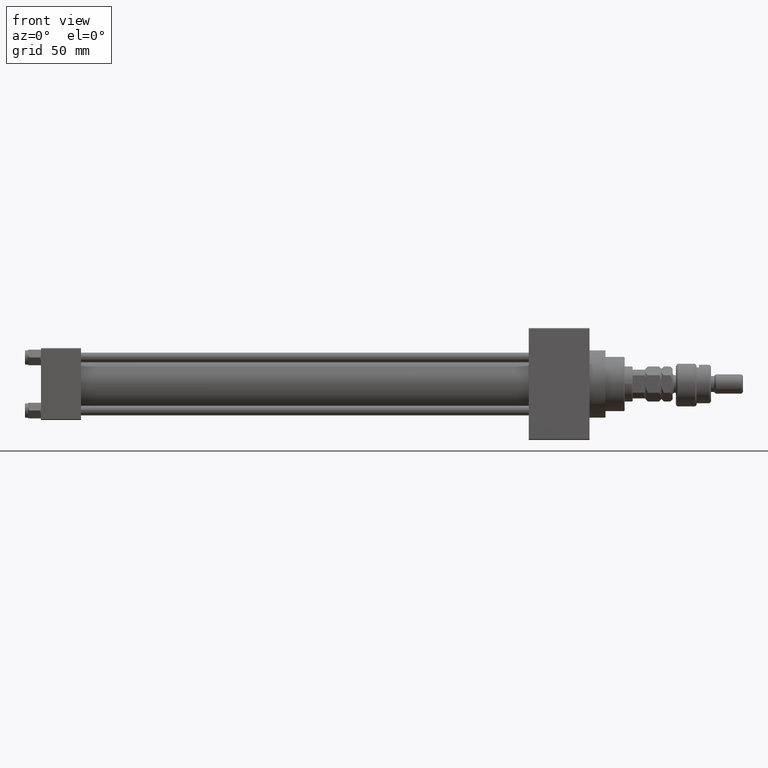
[diagram: clean part render]
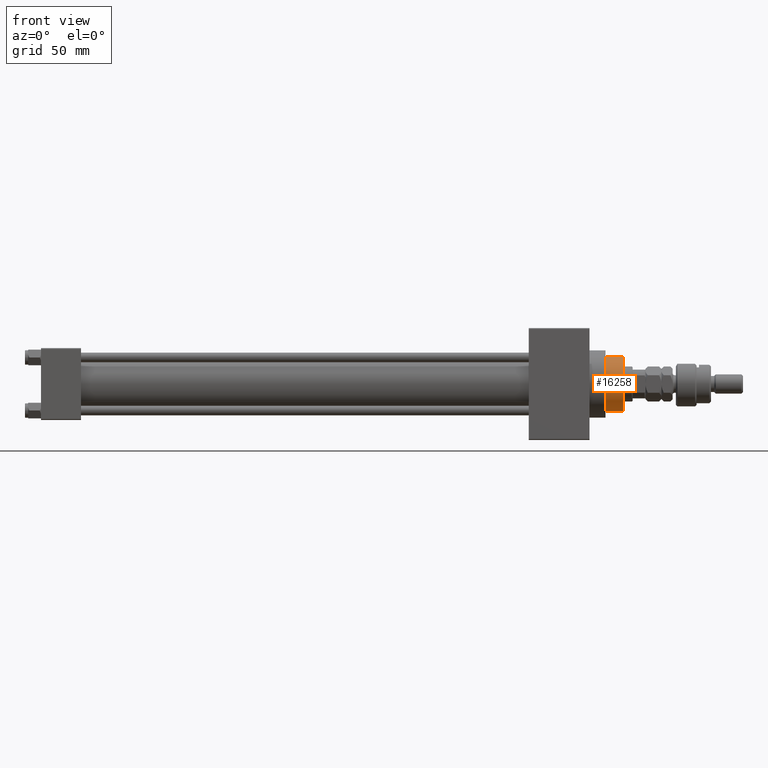
[diagram: same view with one face highlighted and labeled with its STEP entity id]
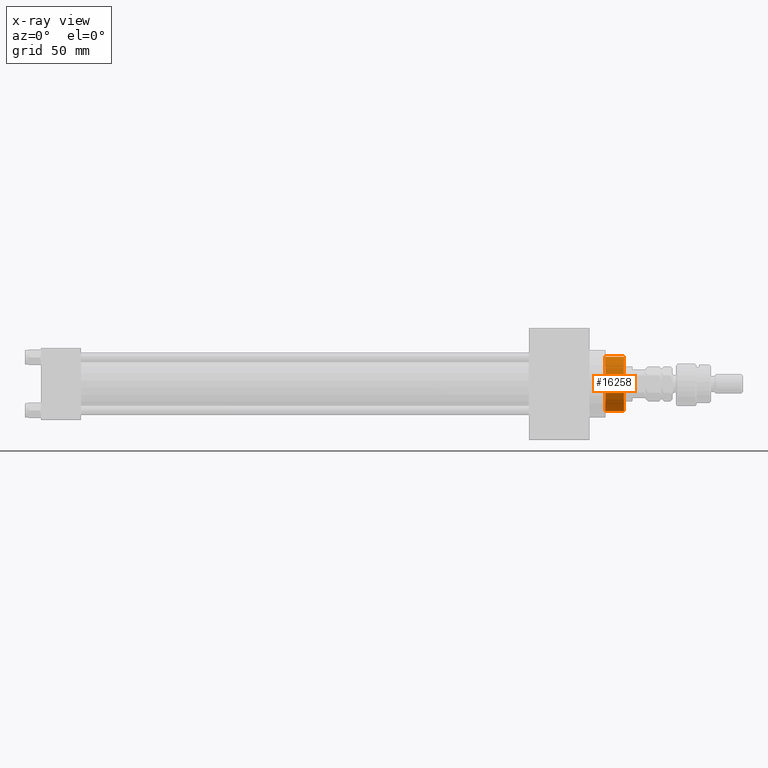
[diagram: x-ray of the same camera — body ghosted, the highlighted face saturated]
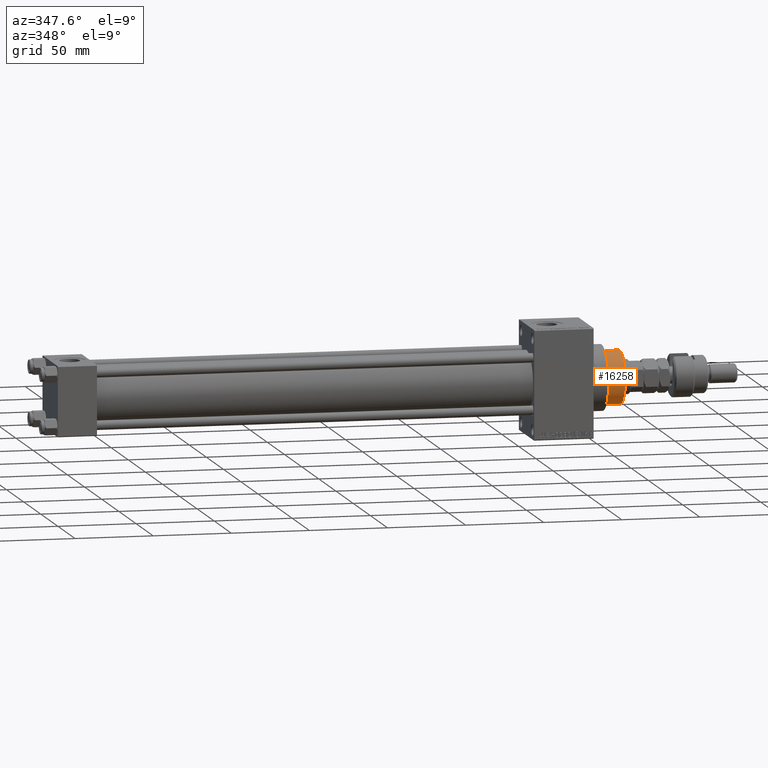
[diagram: same view with one face highlighted and labeled with its STEP entity id]
A machine part, front view. The second image highlights one B-rep face of the part: STEP entity #16258.
The next image is the same camera in x-ray: the body ghosted, the highlighted face saturated — about 0% of this face is hidden behind the body in this view.
A second angle (auxiliary view) of the same face is appended — the face is thin or edge-on in the first view.
In plain terms, the highlighted cylindrical surface (edge-blend (fillet) strip) has radius 17 mm, axis along (-1, 0, 0).
Its self-contained STEP definition (entity closure, byte-faithful):
#255 = DIRECTION ( 'NONE',  ( -1.000000000000000000, 0.000000000000000000, 0.000000000000000000 ) ) ;
#278 = CARTESIAN_POINT ( 'NONE',  ( -17.00000000000000000, 0.000000000000000000, 43.25999999999999801 ) ) ;
#608 = LINE ( 'NONE', #31333, #19171 ) ;
#774 = CYLINDRICAL_SURFACE ( 'NONE', #11442, 17.00000000000000000 ) ;
#1105 = VERTEX_POINT ( 'NONE', #278 ) ;
#1553 = VERTEX_POINT ( 'NONE', #10457 ) ;
#4864 = VECTOR ( 'NONE', #6081, 1000.000000000000000 ) ;
#6081 = DIRECTION ( 'NONE',  ( -0.000000000000000000, -0.000000000000000000, -1.000000000000000000 ) ) ;
#6368 = ORIENTED_EDGE ( 'NONE', *, *, #45739, .T. ) ;
#8495 = DIRECTION ( 'NONE',  ( -0.000000000000000000, -0.000000000000000000, -1.000000000000000000 ) ) ;
#8826 = AXIS2_PLACEMENT_3D ( 'NONE', #22909, #37895, #14775 ) ;
#10340 = CARTESIAN_POINT ( 'NONE',  ( 17.00000000000000000, 2.081899558550500280E-15, 54.76000000000001222 ) ) ;
#10457 = CARTESIAN_POINT ( 'NONE',  ( 17.00000000000000000, 2.081899558550500280E-15, 43.25999999999999801 ) ) ;
#11442 = AXIS2_PLACEMENT_3D ( 'NONE', #13829, #32801, #255 ) ;
#12898 = ORIENTED_EDGE ( 'NONE', *, *, #13998, .T. ) ;
#13829 = CARTESIAN_POINT ( 'NONE',  ( 0.000000000000000000, 0.000000000000000000, 55.26000000000000512 ) ) ;
#13953 = CIRCLE ( 'NONE', #18162, 17.00000000000000000 ) ;
#13998 = EDGE_CURVE ( 'NONE', #49097, #16027, #40701, .T. ) ;
#14775 = DIRECTION ( 'NONE',  ( 1.000000000000000000, 0.000000000000000000, 0.000000000000000000 ) ) ;
#16027 = VERTEX_POINT ( 'NONE', #10340 ) ;
#16258 = ADVANCED_FACE ( 'NONE', ( #36503 ), #774, .T. ) ;
#18162 = AXIS2_PLACEMENT_3D ( 'NONE', #42231, #18590, #33819 ) ;
#18590 = DIRECTION ( 'NONE',  ( 0.000000000000000000, 0.000000000000000000, 1.000000000000000000 ) ) ;
#19171 = VECTOR ( 'NONE', #8495, 1000.000000000000000 ) ;
#20419 = EDGE_CURVE ( 'NONE', #49097, #1105, #608, .T. ) ;
#22909 = CARTESIAN_POINT ( 'NONE',  ( 0.000000000000000000, 0.000000000000000000, 54.76000000000001222 ) ) ;
#25301 = ORIENTED_EDGE ( 'NONE', *, *, #20419, .F. ) ;
#31333 = CARTESIAN_POINT ( 'NONE',  ( -17.00000000000000000, 0.000000000000000000, 55.26000000000000512 ) ) ;
#32801 = DIRECTION ( 'NONE',  ( -0.000000000000000000, -0.000000000000000000, -1.000000000000000000 ) ) ;
#33819 = DIRECTION ( 'NONE',  ( 1.000000000000000000, 0.000000000000000000, 0.000000000000000000 ) ) ;
#34169 = CARTESIAN_POINT ( 'NONE',  ( 17.00000000000000000, 2.081899558550500280E-15, 55.26000000000000512 ) ) ;
#34421 = LINE ( 'NONE', #34169, #4864 ) ;
#36503 = FACE_OUTER_BOUND ( 'NONE', #40912, .T. ) ;
#37895 = DIRECTION ( 'NONE',  ( 0.000000000000000000, 0.000000000000000000, -1.000000000000000000 ) ) ;
#40701 = CIRCLE ( 'NONE', #8826, 17.00000000000000000 ) ;
#40912 = EDGE_LOOP ( 'NONE', ( #12898, #6368, #47771, #25301 ) ) ;
#42231 = CARTESIAN_POINT ( 'NONE',  ( 0.000000000000000000, 0.000000000000000000, 43.25999999999999801 ) ) ;
#42527 = EDGE_CURVE ( 'NONE', #1553, #1105, #13953, .T. ) ;
#45739 = EDGE_CURVE ( 'NONE', #16027, #1553, #34421, .T. ) ;
#47771 = ORIENTED_EDGE ( 'NONE', *, *, #42527, .T. ) ;
#49097 = VERTEX_POINT ( 'NONE', #49650 ) ;
#49650 = CARTESIAN_POINT ( 'NONE',  ( -17.00000000000000000, 0.000000000000000000, 54.76000000000001222 ) ) ;